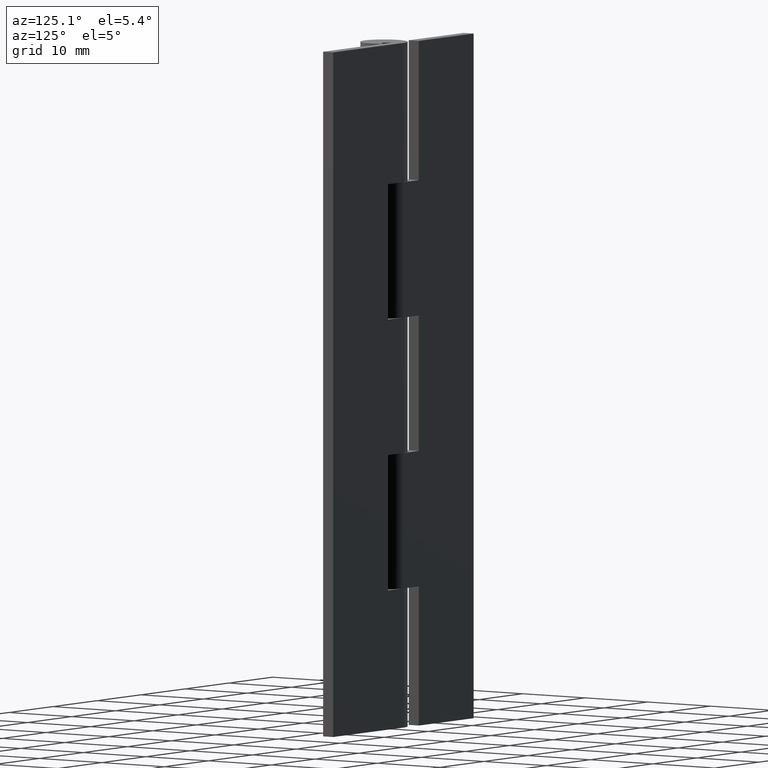
[diagram: clean part render]
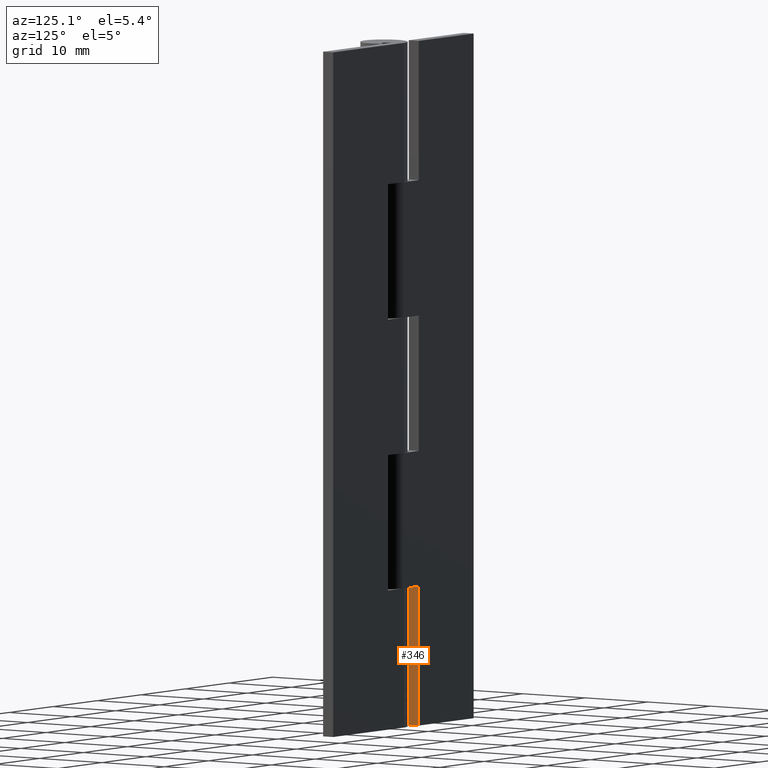
[diagram: same view with one face highlighted and labeled with its STEP entity id]
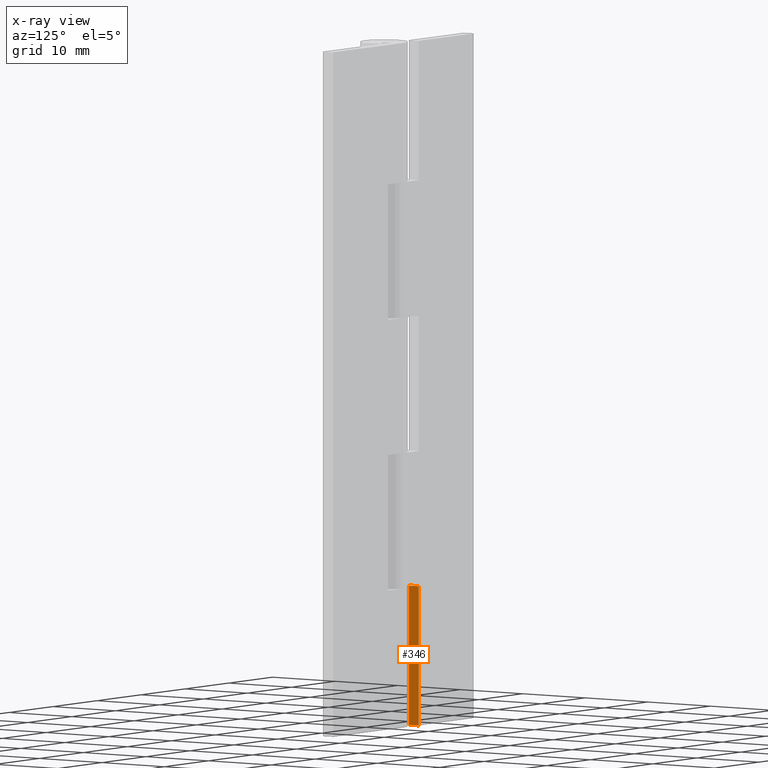
[diagram: x-ray of the same camera — body ghosted, the highlighted face saturated]
A machine part, auxiliary view. The second image highlights one B-rep face of the part: STEP entity #346.
The next image is the same camera in x-ray: the body ghosted, the highlighted face saturated — about 0% of this face is hidden behind the body in this view.
In plain terms, the highlighted face is a freeform B-spline surface patch.
Its self-contained STEP definition (entity closure, byte-faithful):
#290=CARTESIAN_POINT('',(-3.500000000000100,1.499999999999946,18.300003000000000));
#291=VERTEX_POINT('',#290);
#297=CARTESIAN_POINT('',(-3.500000000000100,3.099998000000050,18.300003000000000));
#298=VERTEX_POINT('',#297);
#299=CARTESIAN_POINT('',(-3.500000000000100,1.499999999999946,18.300003000000000));
#300=CARTESIAN_POINT('',(-3.500000000000100,3.099998000000050,18.300003000000000));
#301=QUASI_UNIFORM_CURVE('',1,(#299,#300),.UNSPECIFIED.,.F.,.U.);
#302=EDGE_CURVE('',#291,#298,#301,.T.);
#319=CARTESIAN_POINT('',(-3.500000000000100,3.179917896998949,-0.914085114381043));
#320=CARTESIAN_POINT('',(-3.500000000000100,3.179917896998949,19.214088605225381));
#321=CARTESIAN_POINT('',(-3.500000000000100,1.420080060085757,-0.914085114381043));
#322=CARTESIAN_POINT('',(-3.500000000000100,1.420080060085757,19.214088605225381));
#323=B_SPLINE_SURFACE_WITH_KNOTS('',1,1,((#319,#321),(#320,#322)),.UNSPECIFIED.,.F.,.F.,.U.,(2,2),(2,2),(0.0,20.128173719606419),(0.041708334948495,0.958291687403247),.UNSPECIFIED.);
#324=CARTESIAN_POINT('',(-3.500000000000100,1.500000000000000,0.0));
#325=VERTEX_POINT('',#324);
#326=CARTESIAN_POINT('',(-3.500000000000100,1.499999999999946,18.300003000000000));
#327=CARTESIAN_POINT('',(-3.500000000000100,1.500000000000000,0.0));
#328=QUASI_UNIFORM_CURVE('',1,(#326,#327),.UNSPECIFIED.,.F.,.U.);
#329=EDGE_CURVE('',#291,#325,#328,.T.);
#330=ORIENTED_EDGE('',*,*,#329,.T.);
#331=CARTESIAN_POINT('',(-3.500000000000100,3.099998000000050,0.0));
#332=VERTEX_POINT('',#331);
#333=CARTESIAN_POINT('',(-3.500000000000100,1.500000000000000,0.0));
#334=CARTESIAN_POINT('',(-3.500000000000100,3.099998000000050,0.0));
#335=QUASI_UNIFORM_CURVE('',1,(#333,#334),.UNSPECIFIED.,.F.,.U.);
#336=EDGE_CURVE('',#325,#332,#335,.T.);
#337=ORIENTED_EDGE('',*,*,#336,.T.);
#338=CARTESIAN_POINT('',(-3.500000000000100,3.099998000000050,0.0));
#339=CARTESIAN_POINT('',(-3.500000000000100,3.099998000000050,18.300003000000000));
#340=QUASI_UNIFORM_CURVE('',1,(#338,#339),.UNSPECIFIED.,.F.,.U.);
#341=EDGE_CURVE('',#332,#298,#340,.T.);
#342=ORIENTED_EDGE('',*,*,#341,.T.);
#343=ORIENTED_EDGE('',*,*,#302,.F.);
#344=EDGE_LOOP('',(#330,#337,#342,#343));
#345=FACE_OUTER_BOUND('',#344,.T.);
#346=ADVANCED_FACE('',(#345),#323,.T.);